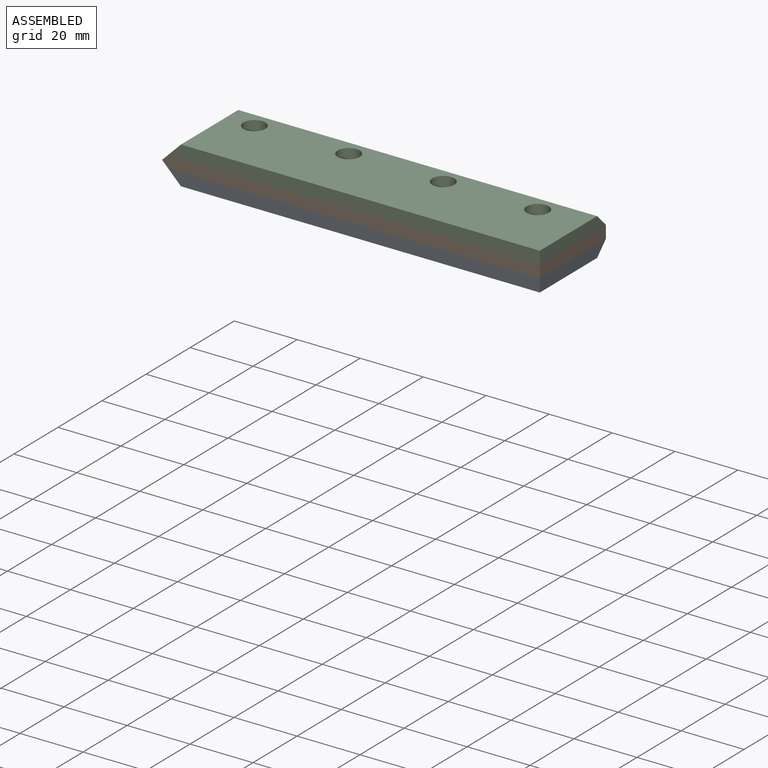
[diagram: assembled view]
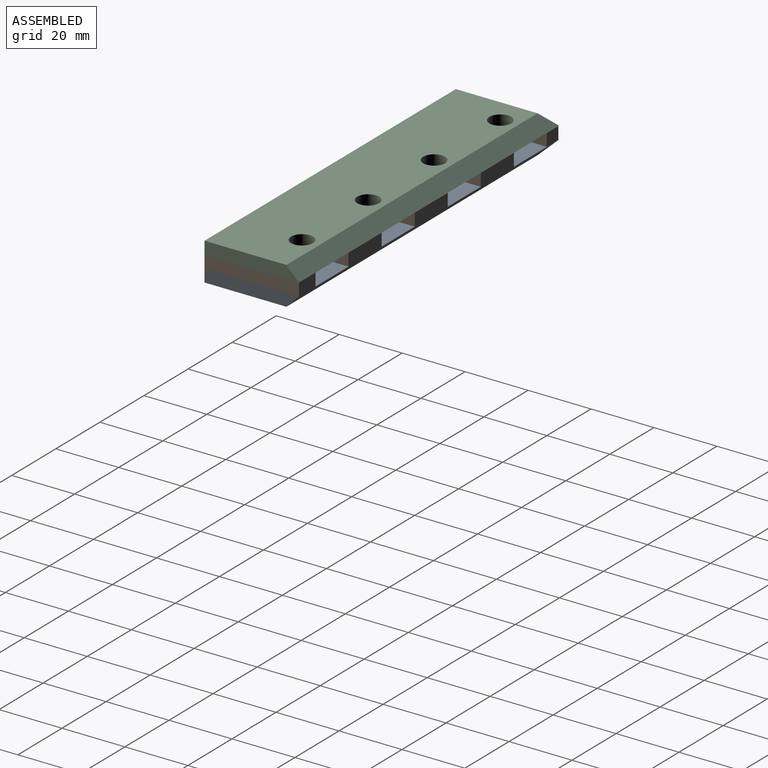
[diagram: assembled view, second angle]
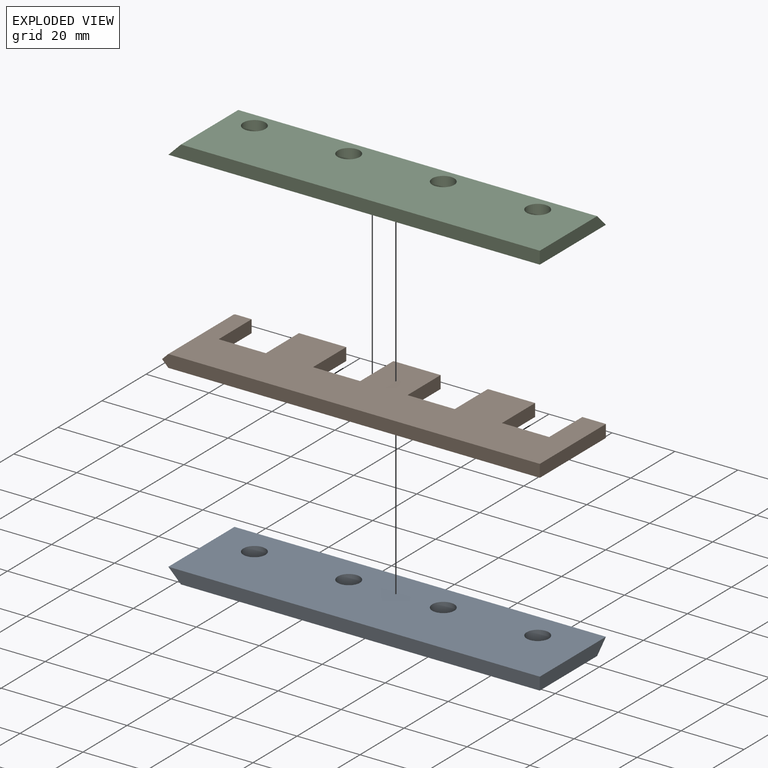
[diagram: exploded view]
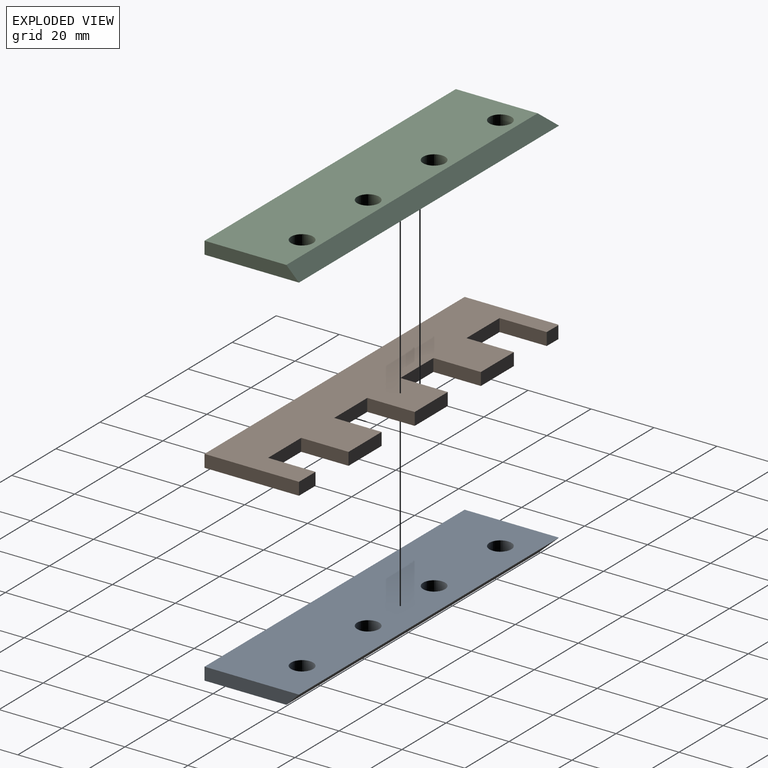
[diagram: exploded view, second angle]
ASSEMBLY  parts=3 mates=2
PART A: 10 faces, bbox 118x30x4 mm
  f0: plane 30x4mm, normal (1,0,0), area 112mm2, adj f3,f6,f7,f9
  f1: cylinder r=3.5mm len=7mm, axis (0,0,-1), area 88mm2, adj f6,f7
  f2: cylinder r=3.5mm len=7mm, axis (0,0,-1), area 88mm2, adj f6,f7
  f3: plane 118x4mm, normal (0,-1,0), area 464mm2, adj f0,f6,f7,f8
  f4: cylinder r=3.5mm len=7mm, axis (0,0,-1), area 88mm2, adj f6,f7
  f5: cylinder r=3.5mm len=7mm, axis (0,0,-1), area 88mm2, adj f6,f7
  f6: plane 118x30mm, normal (0,0,1), area 3386.1mm2, adj f0,f1,f2,f3,f4,f5,f8,f9
  f7: plane 114x26mm, normal (0,0,-1), area 2810.1mm2, adj f0,f1,f2,f3,f4,f5,f8,f9
  f8: plane 30x4mm, normal (-0.71,0,-0.71), area 158.4mm2, adj f3,f6,f7,f9
  f9: plane 118x4mm, normal (0,0.71,-0.71), area 656.2mm2, adj f0,f6,f7,f8
PART B: 27 faces, bbox 120x30x4 mm
  f0: plane 15x4mm, normal (0,1,0), area 60mm2, adj f1,f21,f22,f23
  f1: plane 15.06x4mm, normal (-1,0,0), area 60.2mm2, adj f0,f2,f22,f23
  f2: plane 15x4mm, normal (0,1,0), area 60mm2, adj f1,f3,f22,f23
  f3: plane 15.06x4mm, normal (1,0,0), area 60.2mm2, adj f2,f4,f22,f23
  f4: plane 15x4mm, normal (0,1,0), area 60mm2, adj f3,f5,f22,f23
  f5: plane 10x4mm, normal (-1,0,0), area 40mm2, adj f4,f6,f22,f23
  f6: plane 5.06x4mm, normal (-1,-0.01,0), area 20.2mm2, adj f5,f7,f22,f23
  f7: plane 15x4mm, normal (0,1,0), area 60mm2, adj f6,f8,f22,f23
  f8: plane 4.98x4mm, normal (1,0.01,0), area 19.9mm2, adj f7,f9,f22,f23
  f9: plane 10x4mm, normal (1,0,0), area 40mm2, adj f8,f10,f22,f23
  f10: plane 5.19x4mm, normal (0.01,1,0), area 20.7mm2, adj f9,f22,f23,f24
  f11: plane 120x4mm, normal (0,-1,0), area 476mm2, adj f12,f22,f23,f25,f26
  f12: plane 30x4mm, normal (1,0,0), area 120mm2, adj f11,f13,f22,f23
  f13: plane 7.5x4mm, normal (0,1,0), area 30mm2, adj f12,f14,f22,f23
  f14: plane 15.06x4mm, normal (-1,0,0), area 60.2mm2, adj f13,f15,f22,f23
  f15: plane 15x4mm, normal (0,1,0), area 60mm2, adj f14,f16,f22,f23
  f16: plane 15.06x4mm, normal (1,0,0), area 60.2mm2, adj f15,f17,f22,f23
  f17: plane 15x4mm, normal (0,1,0), area 60mm2, adj f16,f18,f22,f23
  f18: plane 15.06x4mm, normal (-1,0,0), area 60.2mm2, adj f17,f19,f22,f23
  f19: plane 15x4mm, normal (0,1,0), area 60mm2, adj f18,f20,f22,f23
  f20: plane 5.06x4mm, normal (1,0,0), area 20.2mm2, adj f19,f21,f22,f23
  f21: plane 10x4mm, normal (1,0,0), area 40mm2, adj f0,f20,f22,f23
  f22: plane 118x30mm, normal (0,0,1), area 2636mm2, adj f0,f1,f2,f3,f4,f5,f6,f7
  f23: plane 118x30mm, normal (0,0,-1), area 2636mm2, adj f0,f1,f2,f3,f4,f5,f6,f7
  f24: plane 4x2.3mm, normal (-0.7,0.71,0), area 7.3mm2, adj f10,f22,f23,f25,f26
  f25: plane 29.68x2mm, normal (-0.71,0,-0.71), area 81.1mm2, adj f11,f23,f24,f26
  f26: plane 29.68x2mm, normal (-0.71,0,0.71), area 81.1mm2, adj f11,f22,f24,f25
PART C: 10 faces, bbox 118x30x4 mm
  f0: plane 30x4mm, normal (1,0,0), area 112mm2, adj f3,f6,f7,f9
  f1: cylinder r=3.5mm len=7mm, axis (0,0,-1), area 88mm2, adj f6,f7
  f2: cylinder r=3.5mm len=7mm, axis (0,0,-1), area 88mm2, adj f6,f7
  f3: plane 118x4mm, normal (0,-1,0), area 464mm2, adj f0,f6,f7,f8
  f4: cylinder r=3.5mm len=7mm, axis (0,0,-1), area 88mm2, adj f6,f7
  f5: cylinder r=3.5mm len=7mm, axis (0,0,-1), area 88mm2, adj f6,f7
  f6: plane 114x26mm, normal (0,0,1), area 2810.1mm2, adj f0,f1,f2,f3,f4,f5,f8,f9
  f7: plane 118x30mm, normal (0,0,-1), area 3386.1mm2, adj f0,f1,f2,f3,f4,f5,f8,f9
  f8: plane 30x4mm, normal (-0.71,0,0.71), area 158.4mm2, adj f3,f6,f7,f9
  f9: plane 118x4mm, normal (0,0.71,0.71), area 656.2mm2, adj f0,f6,f7,f8
PLACE A t=(-48.26,-14.96,4.03)mm
PLACE B t=(-46.57,-14.11,8.03)mm
PLACE C t=(-46.47,-14.11,12.03)mm
MATE fastened C.f7 <-> B.f22  axis (0,0,1) through (-120.01,-44.11,12.03)mm
MATE fastened A.f6 <-> B.f23  axis (0,0,1) through (-2.01,-14.11,8.03)mm
